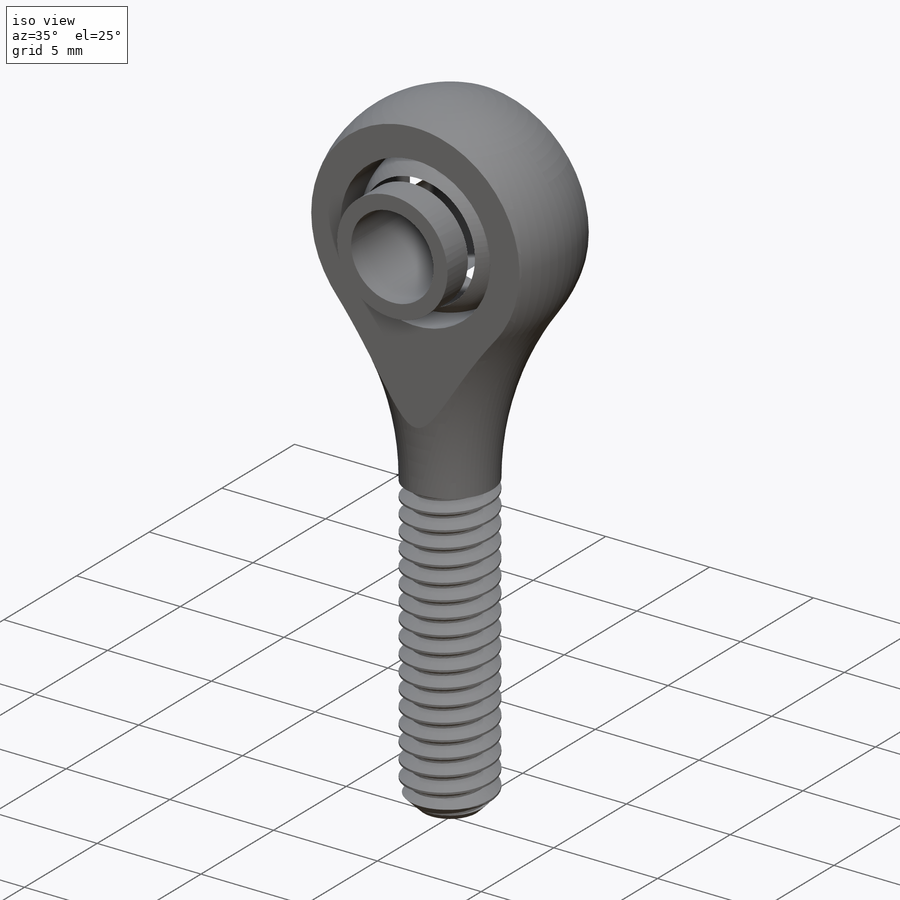
[diagram: iso view]
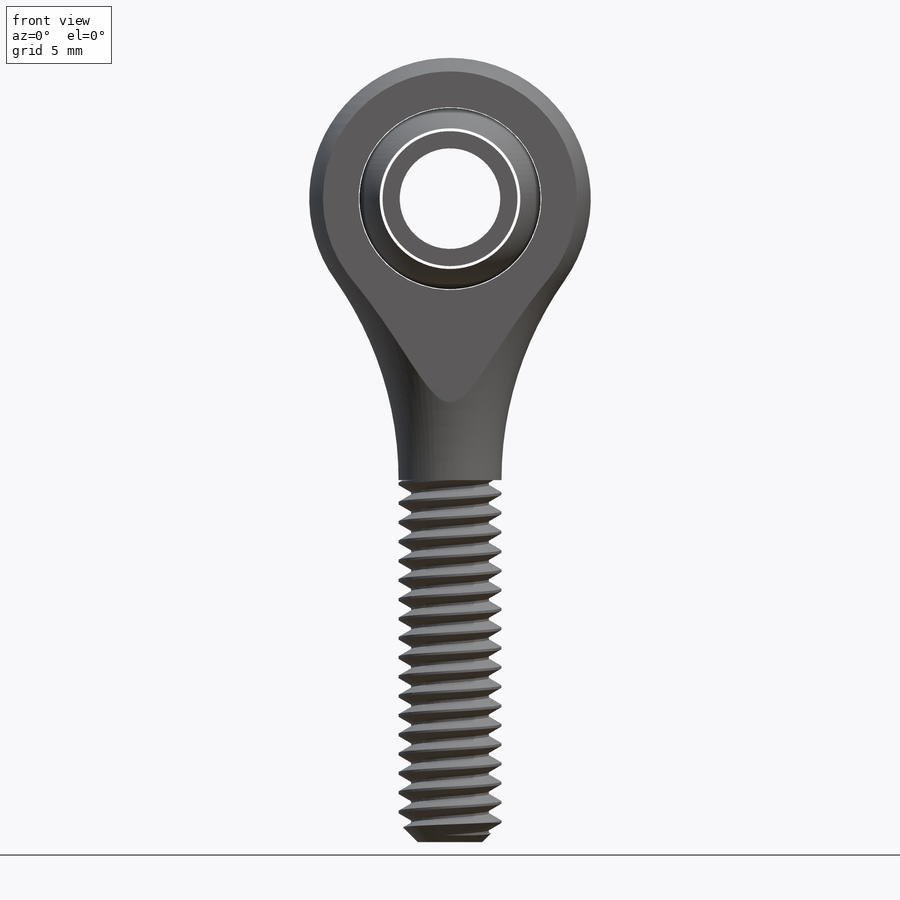
[diagram: front view]
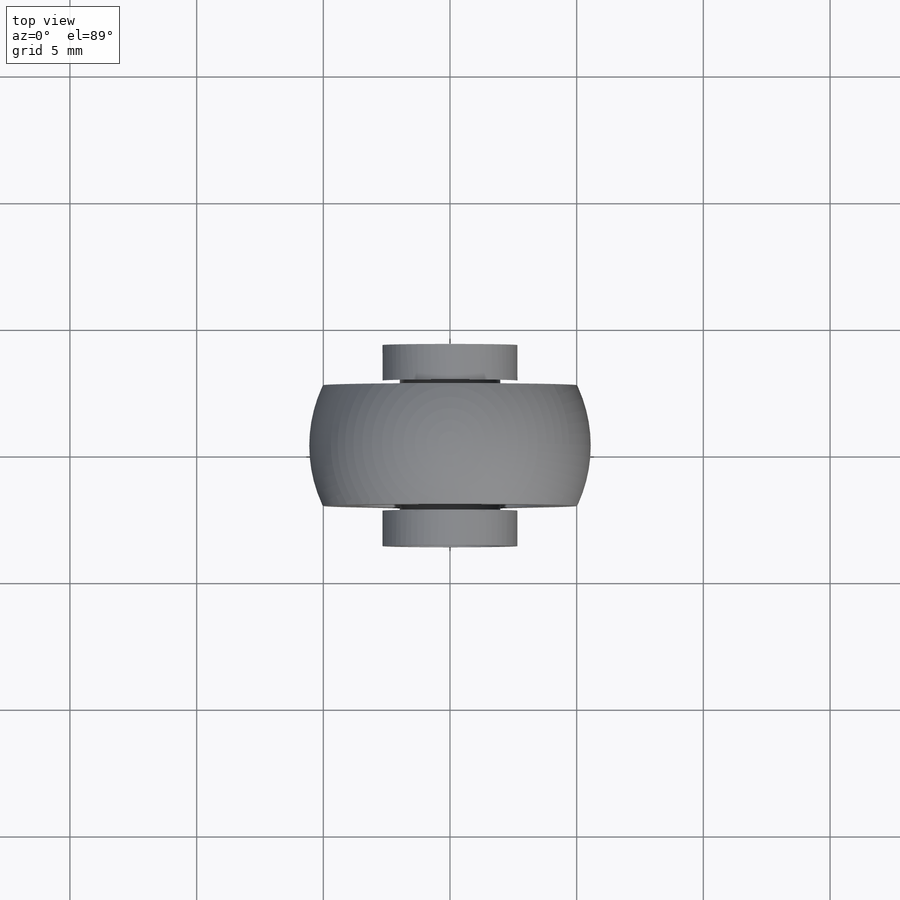
[diagram: top view]
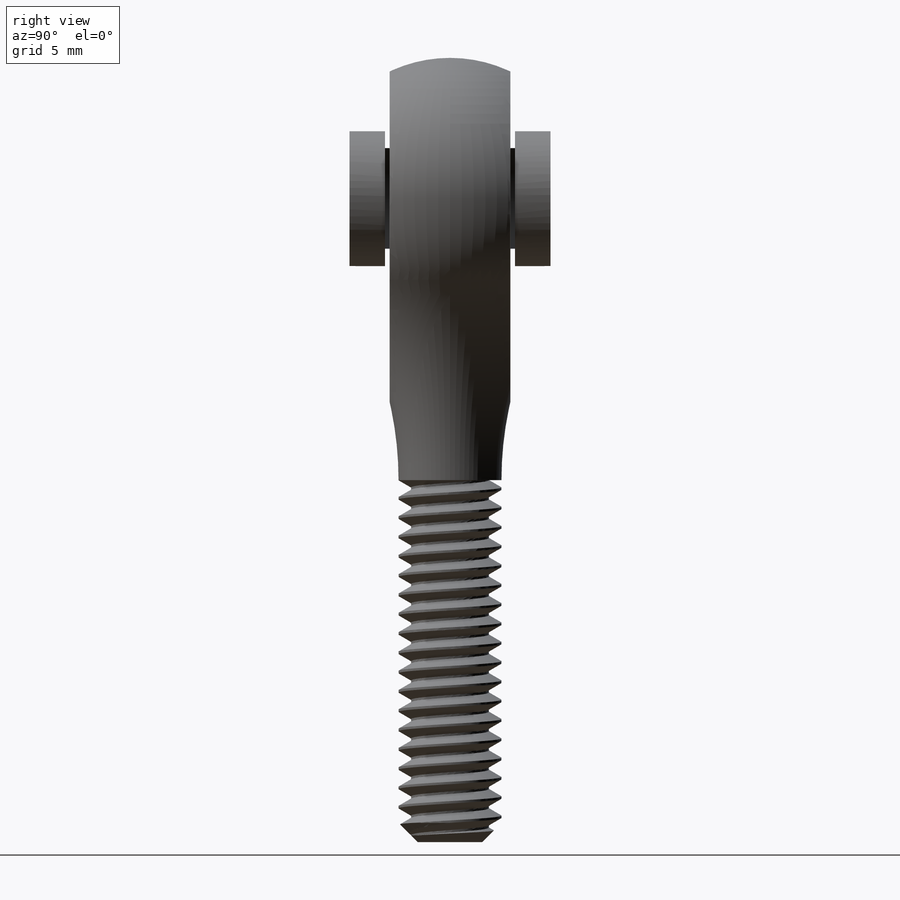
[diagram: right view]
SOLIDWORKS PART (.sldprt)
format: sldprt  version: not decoded by parser v0  size: 912,896 bytes
history: native  units: mm
features: sketch x12, revolve x4, cut_extrude x4, chamfer x2, material x1, helix x1, sweep x1, fillet x1 (+15 scaffold rows collapsed; 1 parser-record rows omitted)
feature tree (42):
  scaffold x15  (default folders/planes/origin — collapsed)
  material  "Material <not specified>"
  sketch  "Sketch1"  dims[A=~3.96875mm Ball Dia=~7.14375mm B=11.1125mm D=25.4mm E=14.2875mm Thread Dia=4.064mm]
  revolve  "Revolve1"  Angle=360deg
  chamfer  "Chamfer2"  Distance=0.762mm Angle=45deg
  sketch  "Sketch12"  dims[D1=0.0mm]
  helix  "Helix/Spiral1"  Pitch=19.3675mm
  sketch  "Sketch13"  dims[c1.D1=~4.562298mm c2.D1=60.0deg c2.D2=~0.09525mm c2.D3=0.381mm]
  sweep  "Cut-Sweep2"
  sketch  "Sketch4"  dims[D1=2.54mm]
  revolve  "Revolve2"  Angle=360deg
  sketch  "Sketch5"  dims[c1.F=4.7625mm c1.D2=~11.456971mm c2.D2=35.0deg c3.D2=~141.62799mm c4.D2=35.0deg c5.D2=0.9525mm c5.D1=4.064mm]
  cut_extrude  "Cut-Extrude1"  [1 undecoded]
  sketch  "Sketch6"
  cut_extrude  "Cut-Extrude2"  [1 undecoded]
  sketch  "Sketch7"
  revolve  "Revolve3"  Angle=360deg
  sketch  "Sketch8"  dims[C=4.7625mm]
  cut_extrude  "Cut-Extrude3"  [1 undecoded]
  sketch  "Sketch10"
  cut_extrude  "Cut-Extrude4"  [1 undecoded]
  chamfer  "Chamfer1"  Distance=0.198437mm Angle=45deg
  parser-record x1  (decoder bookkeeping rows leaked as tree rows — omitted from the tree; the rows remain in map.json)
  sketch  "Sketch14"  dims[D1=7.9375mm D2=0.508mm]
  revolve  "Revolve4"  Angle=360deg
  fillet  "Fillet1"  Radius=0.508mm
  sketch  "Sketch11"  dims[D1=2.54mm D2=~3.69202mm Swivel=30.0deg]
  sketch  "Sketch15"
decode coverage: 16 of 25 modeling features carry decoded parameters
note: ~ marks probable driven/reference dimensions
note: 4 parameter values undecoded
summary: no parameter record found for 4 features
note: suppression state not decoded; provenance and decode notes live in map.json
